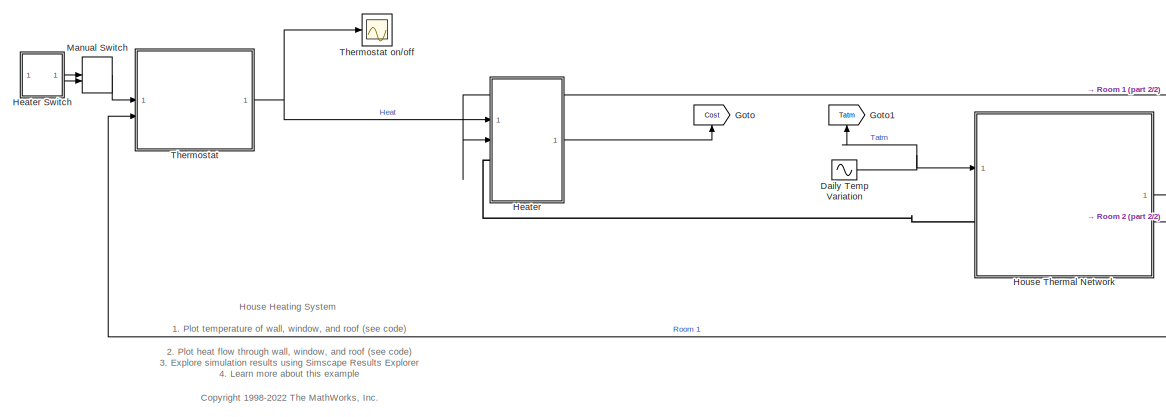
[diagram: root canvas - part 1/2, center side, full height]
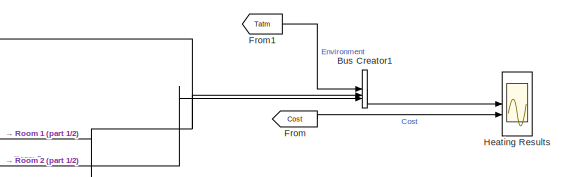
[diagram: root canvas - part 2/2, middle right region]
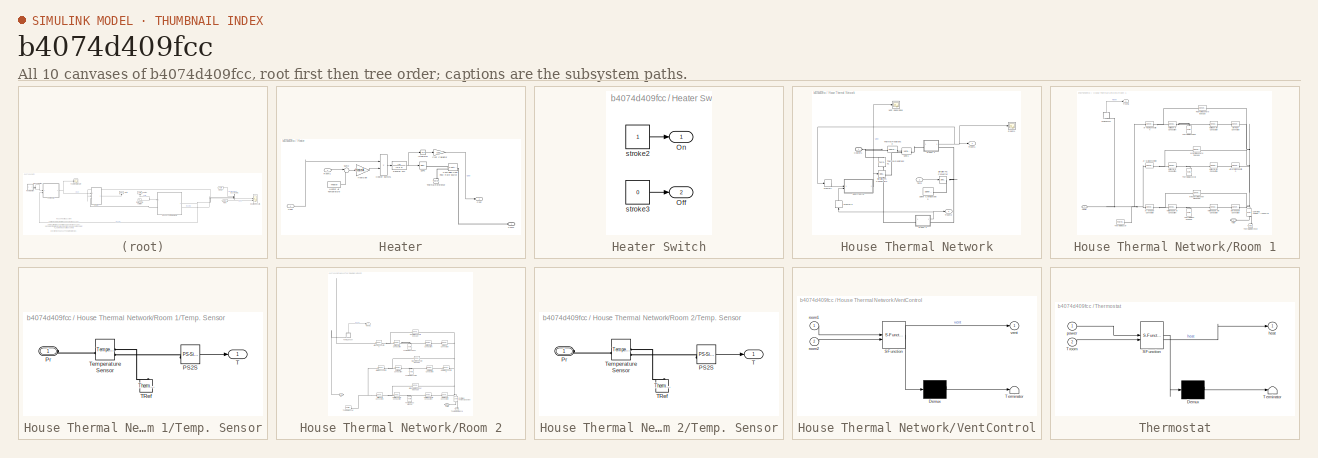
[diagram: thumbnail index - all 10 canvases of the model, root first then tree order]
MODEL slx_b4074d409fcc
KIND model
CONFIG AbsTol = 1e-3
CONFIG EnableMultiTasking = off
CONFIG FixedStep = 1
CONFIG InitFcn = %   Simscape Demo "House Heating System"\nmax_temp = 23;    % Maximum temperature\nmin_temp = 18;     % Minimum temperature\n% Walls\n% House length = 30 m\nlenHouse = 30;\n% House width = 10 m\nwidHouse = 10;\n% House height = 4 m\nhtHouse = 4;\nwallArea = 2*lenHouse*htHouse + 2*widHouse*htHouse;\nLWall = .2;\nwallVolume = wallArea * LWall;\nwallDensity = 1920;     % kg/m^3\nwallMass = wallVolume * wallDensity...<+1996ch>
CONFIG MaxStep = 50
CONFIG MinStep = auto
CONFIG RelTol = 1e-3
CONFIG SampleTimeConstraint = Unconstrained
CONFIG SolverName = VariableStepAuto
CONFIG StartTime = 0.0
CONFIG StopTime = 3600*24
BLOCK [BusCreator] Bus Creator1
  DisplayOption = bar
  InheritFromInputs = on
  Inputs = 3
BLOCK [Sin] Daily Temp Variation
  Amplitude = 10
  Bias = 10
  Frequency = 2*pi/(24*3600)
  Phase = (-pi)/2
  SampleTime = 0
BLOCK [From] From
  GotoTag = Cost
BLOCK [From] From1
  GotoTag = Tatm
BLOCK [Goto] Goto
  GotoTag = Cost
  NameLocation = right
BLOCK [Goto] Goto1
  GotoTag = Tatm
  NameLocation = right
BLOCK [SubSystem] Heater
BLOCK [SubSystem] Heater Switch
BLOCK [Outport] Heater Switch/Off
  Port = 2
  VectorParamsAs1DForOutWhenUnconnected = off
BLOCK [Outport] Heater Switch/On
  VectorParamsAs1DForOutWhenUnconnected = off
BLOCK [Constant] Heater Switch/stroke2
BLOCK [Constant] Heater Switch/stroke3
  Value = 0
BLOCK [PMIOPort] Heater/Conn1
  Side = Left
BLOCK [Reference] Heater/Controlled Heat Flow Rate Source  REF=fl_lib/Thermal/Thermal Sources/Controlled Heat Flow
Rate Source
  SourceBlock = fl_lib/Thermal/Thermal Sources/Controlled Heat Flow\nRate Source
  SourceType = Controlled Heat Flow\nRate Source
BLOCK [Outport] Heater/Cost
BLOCK [Gain] Heater/Cost Calculator
  Gain = cost
  OutDataTypeStr = Inherit: Same as input
  ParamDataTypeStr = Inherit: Same as input
  SaturateOnIntegerOverflow = on
BLOCK [Inport] Heater/Heat
BLOCK [Gain] Heater/HeatGain
  Gain = HeaterAirFlow * c_air
BLOCK [Constant] Heater/Heater Air Temperature
  Value = THeater
BLOCK [Product] Heater/Heater Switch1
  RndMeth = Zero
BLOCK [Integrator] Heater/Integrator
BLOCK [Inport] Heater/Room1
  Port = 2
BLOCK [Reference] Heater/S2PS  REF=nesl_utility/Simulink-PS
Converter
  SourceBlock = nesl_utility/Simulink-PS\nConverter
  SourceType = Simulink-PS\nConverter
BLOCK [Sum] Heater/Sum2
  Inputs = |-+
BLOCK [Reference] Heater/Thermal Reference  REF=fl_lib/Thermal/Thermal Elements/Thermal Reference
  NameLocation = right
  SourceBlock = fl_lib/Thermal/Thermal Elements/Thermal Reference
  SourceType = Thermal Reference
BLOCK [TransferFcn] Heater/Transfer Fcn
  Denominator = [0.5 1]
BLOCK [Scope] Heating Results
  Floating = off
  NumInputPorts = 2
  ScopeSpecificationString = Simulink.scopes.TimeScopeBlockCfg('CurrentConfiguration', extmgr.ConfigurationSet(extmgr.Configuration('Core','General UI',true,'FigureColor',[0.501960784313725 0.501960784313725 0.501960784313725]),extmgr.Configuration('Core','Source UI',true),extmgr.Configuration('Sources','WiredSimulink',true,'DataLoggingVariableName','a3','DataLoggingSaveFormat','Array','DataLoggingDecimation','1'),extmgr.Conf...<+3829ch>
  Tag = PublishScope
BLOCK [SubSystem] House Thermal Network
  Tag = PublishSubsystem
BLOCK [PMIOPort] House Thermal Network/Heater1
  Side = Left
  Tag = PMCPort
BLOCK [Memory] House Thermal Network/Memory
BLOCK [Memory] House Thermal Network/Memory1
  NameLocation = right
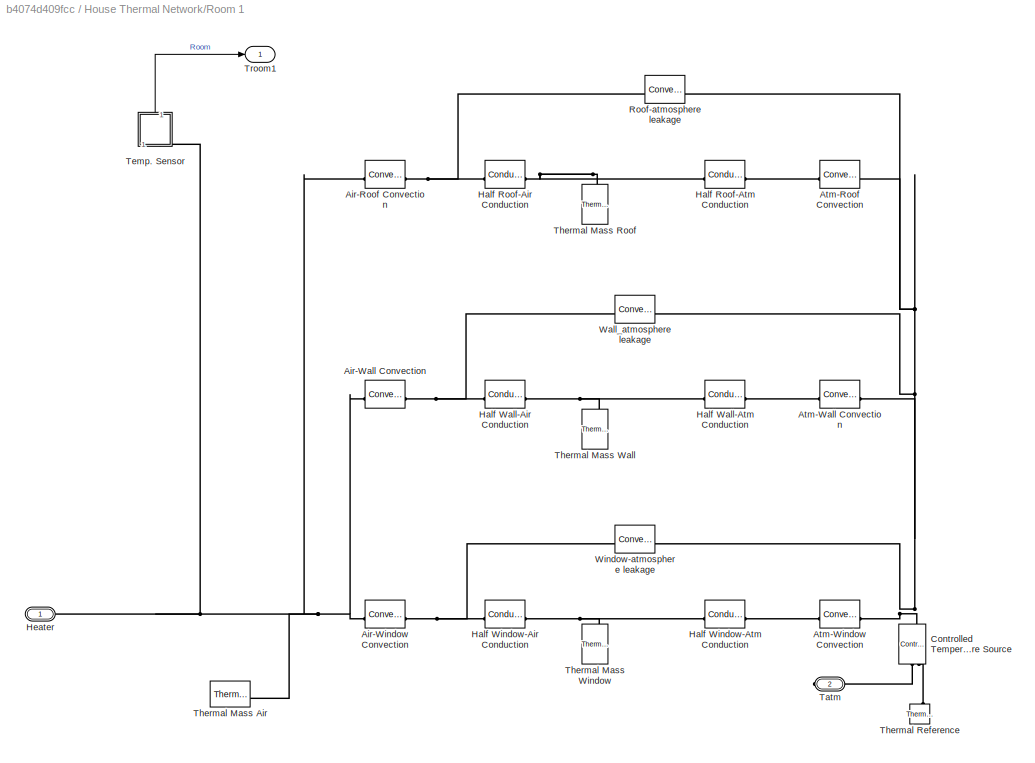
BLOCK [SubSystem] House Thermal Network/Room 1
BLOCK [Reference] House Thermal Network/Room 1/Air-Roof Convection  REF=fl_lib/Thermal/Thermal Elements/Convective Heat
Transfer
  SourceBlock = fl_lib/Thermal/Thermal Elements/Convective Heat\nTransfer
  SourceType = Convective Heat\nTransfer
BLOCK [Reference] House Thermal Network/Room 1/Air-Wall Convection  REF=fl_lib/Thermal/Thermal Elements/Convective Heat
Transfer
  SourceBlock = fl_lib/Thermal/Thermal Elements/Convective Heat\nTransfer
  SourceType = Convective Heat\nTransfer
BLOCK [Reference] House Thermal Network/Room 1/Air-Window Convection  REF=fl_lib/Thermal/Thermal Elements/Convective Heat
Transfer
  SourceBlock = fl_lib/Thermal/Thermal Elements/Convective Heat\nTransfer
  SourceType = Convective Heat\nTransfer
BLOCK [Reference] House Thermal Network/Room 1/Atm-Roof Convection  REF=fl_lib/Thermal/Thermal Elements/Convective Heat
Transfer
  SourceBlock = fl_lib/Thermal/Thermal Elements/Convective Heat\nTransfer
  SourceType = Convective Heat\nTransfer
BLOCK [Reference] House Thermal Network/Room 1/Atm-Wall Convection  REF=fl_lib/Thermal/Thermal Elements/Convective Heat
Transfer
  SourceBlock = fl_lib/Thermal/Thermal Elements/Convective Heat\nTransfer
  SourceType = Convective Heat\nTransfer
BLOCK [Reference] House Thermal Network/Room 1/Atm-Window Convection  REF=fl_lib/Thermal/Thermal Elements/Convective Heat
Transfer
  SourceBlock = fl_lib/Thermal/Thermal Elements/Convective Heat\nTransfer
  SourceType = Convective Heat\nTransfer
BLOCK [Reference] House Thermal Network/Room 1/Controlled Temperature Source  REF=fl_lib/Thermal/Thermal Sources/Controlled
Temperature Source
  NameLocation = right
  SourceBlock = fl_lib/Thermal/Thermal Sources/Controlled\nTemperature Source
  SourceType = Controlled\nTemperature Source
BLOCK [Reference] House Thermal Network/Room 1/Half Roof-Air Conduction  REF=fl_lib/Thermal/Thermal Elements/Conductive Heat
Transfer
  SourceBlock = fl_lib/Thermal/Thermal Elements/Conductive Heat\nTransfer
  SourceType = Conductive Heat\nTransfer
BLOCK [Reference] House Thermal Network/Room 1/Half Roof-Atm Conduction  REF=fl_lib/Thermal/Thermal Elements/Conductive Heat
Transfer
  SourceBlock = fl_lib/Thermal/Thermal Elements/Conductive Heat\nTransfer
  SourceType = Conductive Heat\nTransfer
BLOCK [Reference] House Thermal Network/Room 1/Half Wall-Air Conduction  REF=fl_lib/Thermal/Thermal Elements/Conductive Heat
Transfer
  SourceBlock = fl_lib/Thermal/Thermal Elements/Conductive Heat\nTransfer
  SourceType = Conductive Heat\nTransfer
BLOCK [Reference] House Thermal Network/Room 1/Half Wall-Atm Conduction  REF=fl_lib/Thermal/Thermal Elements/Conductive Heat
Transfer
  SourceBlock = fl_lib/Thermal/Thermal Elements/Conductive Heat\nTransfer
  SourceType = Conductive Heat\nTransfer
BLOCK [Reference] House Thermal Network/Room 1/Half Window-Air Conduction  REF=fl_lib/Thermal/Thermal Elements/Conductive Heat
Transfer
  SourceBlock = fl_lib/Thermal/Thermal Elements/Conductive Heat\nTransfer
  SourceType = Conductive Heat\nTransfer
BLOCK [Reference] House Thermal Network/Room 1/Half Window-Atm Conduction  REF=fl_lib/Thermal/Thermal Elements/Conductive Heat
Transfer
  SourceBlock = fl_lib/Thermal/Thermal Elements/Conductive Heat\nTransfer
  SourceType = Conductive Heat\nTransfer
BLOCK [PMIOPort] House Thermal Network/Room 1/Heater
  Side = Left
BLOCK [Reference] House Thermal Network/Room 1/Roof-atmosphere leakage  REF=fl_lib/Thermal/Thermal Elements/Convective Heat
Transfer
  SourceBlock = fl_lib/Thermal/Thermal Elements/Convective Heat\nTransfer
  SourceType = Convective Heat\nTransfer
BLOCK [PMIOPort] House Thermal Network/Room 1/Tatm
  Port = 2
  Side = Right
BLOCK [SubSystem] House Thermal Network/Room 1/Temp. Sensor
  NameLocation = right
BLOCK [Reference] House Thermal Network/Room 1/Temp. Sensor/PS2S  REF=nesl_utility/PS-Simulink
Converter
  SourceBlock = nesl_utility/PS-Simulink\nConverter
  SourceType = PS-Simulink\nConverter
BLOCK [PMIOPort] House Thermal Network/Room 1/Temp. Sensor/Pr
  Side = Left
BLOCK [Outport] House Thermal Network/Room 1/Temp. Sensor/T
  VectorParamsAs1DForOutWhenUnconnected = off
BLOCK [Reference] House Thermal Network/Room 1/Temp. Sensor/TRef  REF=fl_lib/Thermal/Thermal Elements/Thermal Reference
  NameLocation = right
  SourceBlock = fl_lib/Thermal/Thermal Elements/Thermal Reference
  SourceType = Thermal Reference
BLOCK [Reference] House Thermal Network/Room 1/Temp. Sensor/Temperature Sensor  REF=fl_lib/Thermal/Thermal Sensors/Temperature Sensor
  SourceBlock = fl_lib/Thermal/Thermal Sensors/Temperature Sensor
  SourceType = Temperature Sensor
BLOCK [Reference] House Thermal Network/Room 1/Thermal Mass Air  REF=fl_lib/Thermal/Thermal Elements/Thermal Mass
  NameLocation = top
  SourceBlock = fl_lib/Thermal/Thermal Elements/Thermal Mass
  SourceType = Thermal Mass
BLOCK [Reference] House Thermal Network/Room 1/Thermal Mass Roof  REF=fl_lib/Thermal/Thermal Elements/Thermal Mass
  NameLocation = right
  SourceBlock = fl_lib/Thermal/Thermal Elements/Thermal Mass
  SourceType = Thermal Mass
BLOCK [Reference] House Thermal Network/Room 1/Thermal Mass Wall  REF=fl_lib/Thermal/Thermal Elements/Thermal Mass
  NameLocation = right
  SourceBlock = fl_lib/Thermal/Thermal Elements/Thermal Mass
  SourceType = Thermal Mass
BLOCK [Reference] House Thermal Network/Room 1/Thermal Mass Window  REF=fl_lib/Thermal/Thermal Elements/Thermal Mass
  NameLocation = right
  SourceBlock = fl_lib/Thermal/Thermal Elements/Thermal Mass
  SourceType = Thermal Mass
BLOCK [Reference] House Thermal Network/Room 1/Thermal Reference  REF=fl_lib/Thermal/Thermal Elements/Thermal Reference
  NameLocation = right
  SourceBlock = fl_lib/Thermal/Thermal Elements/Thermal Reference
  SourceType = Thermal Reference
BLOCK [Outport] House Thermal Network/Room 1/Troom1
  VectorParamsAs1DForOutWhenUnconnected = off
BLOCK [Reference] House Thermal Network/Room 1/Wall_atmosphere leakage  REF=fl_lib/Thermal/Thermal Elements/Convective Heat
Transfer
  SourceBlock = fl_lib/Thermal/Thermal Elements/Convective Heat\nTransfer
  SourceType = Convective Heat\nTransfer
BLOCK [Reference] House Thermal Network/Room 1/Window-atmosphere leakage  REF=fl_lib/Thermal/Thermal Elements/Convective Heat
Transfer
  SourceBlock = fl_lib/Thermal/Thermal Elements/Convective Heat\nTransfer
  SourceType = Convective Heat\nTransfer
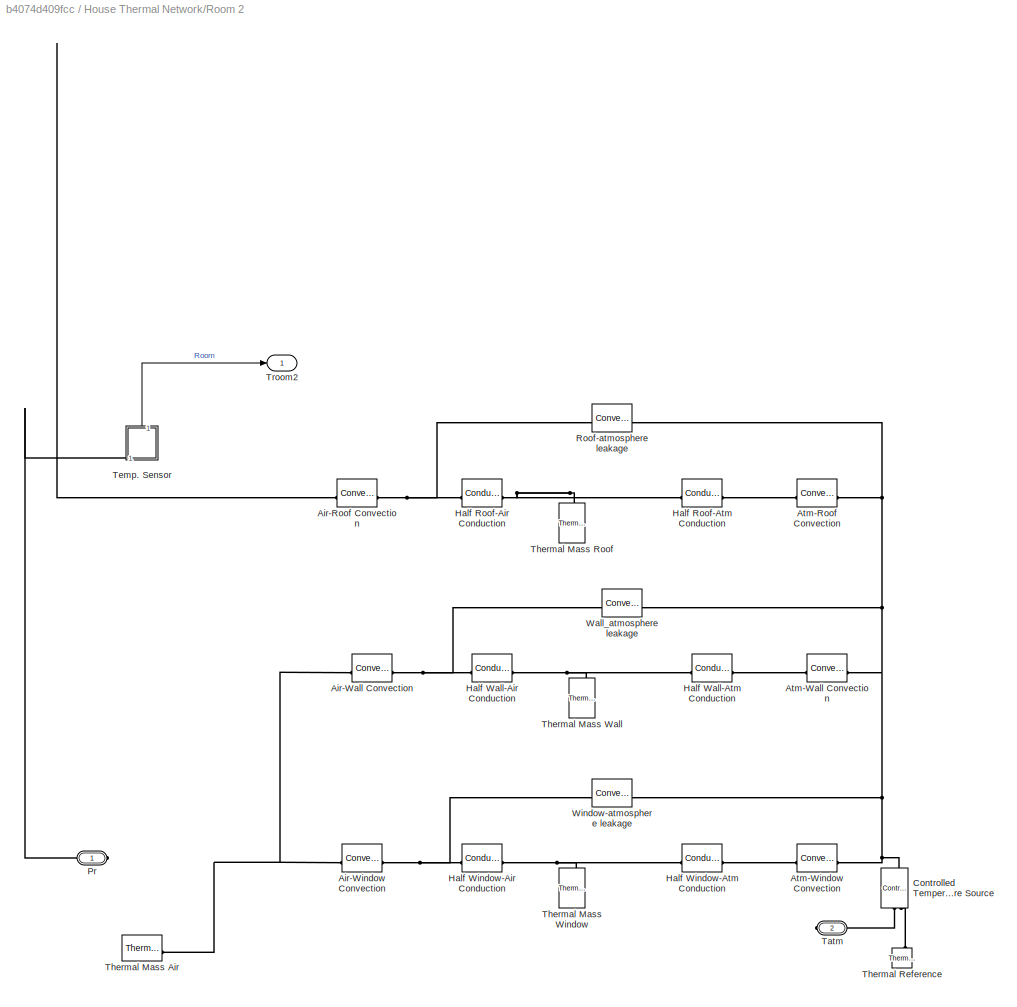
BLOCK [SubSystem] House Thermal Network/Room 2
BLOCK [Reference] House Thermal Network/Room 2/Air-Roof Convection  REF=fl_lib/Thermal/Thermal Elements/Convective Heat
Transfer
  SourceBlock = fl_lib/Thermal/Thermal Elements/Convective Heat\nTransfer
  SourceType = Convective Heat\nTransfer
BLOCK [Reference] House Thermal Network/Room 2/Air-Wall Convection  REF=fl_lib/Thermal/Thermal Elements/Convective Heat
Transfer
  SourceBlock = fl_lib/Thermal/Thermal Elements/Convective Heat\nTransfer
  SourceType = Convective Heat\nTransfer
BLOCK [Reference] House Thermal Network/Room 2/Air-Window Convection  REF=fl_lib/Thermal/Thermal Elements/Convective Heat
Transfer
  SourceBlock = fl_lib/Thermal/Thermal Elements/Convective Heat\nTransfer
  SourceType = Convective Heat\nTransfer
BLOCK [Reference] House Thermal Network/Room 2/Atm-Roof Convection  REF=fl_lib/Thermal/Thermal Elements/Convective Heat
Transfer
  SourceBlock = fl_lib/Thermal/Thermal Elements/Convective Heat\nTransfer
  SourceType = Convective Heat\nTransfer
BLOCK [Reference] House Thermal Network/Room 2/Atm-Wall Convection  REF=fl_lib/Thermal/Thermal Elements/Convective Heat
Transfer
  SourceBlock = fl_lib/Thermal/Thermal Elements/Convective Heat\nTransfer
  SourceType = Convective Heat\nTransfer
BLOCK [Reference] House Thermal Network/Room 2/Atm-Window Convection  REF=fl_lib/Thermal/Thermal Elements/Convective Heat
Transfer
  SourceBlock = fl_lib/Thermal/Thermal Elements/Convective Heat\nTransfer
  SourceType = Convective Heat\nTransfer
BLOCK [Reference] House Thermal Network/Room 2/Controlled Temperature Source  REF=fl_lib/Thermal/Thermal Sources/Controlled
Temperature Source
  NameLocation = right
  SourceBlock = fl_lib/Thermal/Thermal Sources/Controlled\nTemperature Source
  SourceType = Controlled\nTemperature Source
BLOCK [Reference] House Thermal Network/Room 2/Half Roof-Air Conduction  REF=fl_lib/Thermal/Thermal Elements/Conductive Heat
Transfer
  SourceBlock = fl_lib/Thermal/Thermal Elements/Conductive Heat\nTransfer
  SourceType = Conductive Heat\nTransfer
BLOCK [Reference] House Thermal Network/Room 2/Half Roof-Atm Conduction  REF=fl_lib/Thermal/Thermal Elements/Conductive Heat
Transfer
  SourceBlock = fl_lib/Thermal/Thermal Elements/Conductive Heat\nTransfer
  SourceType = Conductive Heat\nTransfer
BLOCK [Reference] House Thermal Network/Room 2/Half Wall-Air Conduction  REF=fl_lib/Thermal/Thermal Elements/Conductive Heat
Transfer
  SourceBlock = fl_lib/Thermal/Thermal Elements/Conductive Heat\nTransfer
  SourceType = Conductive Heat\nTransfer
BLOCK [Reference] House Thermal Network/Room 2/Half Wall-Atm Conduction  REF=fl_lib/Thermal/Thermal Elements/Conductive Heat
Transfer
  SourceBlock = fl_lib/Thermal/Thermal Elements/Conductive Heat\nTransfer
  SourceType = Conductive Heat\nTransfer
BLOCK [Reference] House Thermal Network/Room 2/Half Window-Air Conduction  REF=fl_lib/Thermal/Thermal Elements/Conductive Heat
Transfer
  SourceBlock = fl_lib/Thermal/Thermal Elements/Conductive Heat\nTransfer
  SourceType = Conductive Heat\nTransfer
BLOCK [Reference] House Thermal Network/Room 2/Half Window-Atm Conduction  REF=fl_lib/Thermal/Thermal Elements/Conductive Heat
Transfer
  SourceBlock = fl_lib/Thermal/Thermal Elements/Conductive Heat\nTransfer
  SourceType = Conductive Heat\nTransfer
BLOCK [PMIOPort] House Thermal Network/Room 2/Pr
  Side = Left
BLOCK [Reference] House Thermal Network/Room 2/Roof-atmosphere leakage  REF=fl_lib/Thermal/Thermal Elements/Convective Heat
Transfer
  SourceBlock = fl_lib/Thermal/Thermal Elements/Convective Heat\nTransfer
  SourceType = Convective Heat\nTransfer
BLOCK [PMIOPort] House Thermal Network/Room 2/Tatm
  Port = 2
  Side = Right
BLOCK [SubSystem] House Thermal Network/Room 2/Temp. Sensor
  NameLocation = right
BLOCK [Reference] House Thermal Network/Room 2/Temp. Sensor/PS2S  REF=nesl_utility/PS-Simulink
Converter
  SourceBlock = nesl_utility/PS-Simulink\nConverter
  SourceType = PS-Simulink\nConverter
BLOCK [PMIOPort] House Thermal Network/Room 2/Temp. Sensor/Pr
  Side = Left
BLOCK [Outport] House Thermal Network/Room 2/Temp. Sensor/T
  VectorParamsAs1DForOutWhenUnconnected = off
BLOCK [Reference] House Thermal Network/Room 2/Temp. Sensor/TRef  REF=fl_lib/Thermal/Thermal Elements/Thermal Reference
  NameLocation = right
  SourceBlock = fl_lib/Thermal/Thermal Elements/Thermal Reference
  SourceType = Thermal Reference
BLOCK [Reference] House Thermal Network/Room 2/Temp. Sensor/Temperature Sensor  REF=fl_lib/Thermal/Thermal Sensors/Temperature Sensor
  SourceBlock = fl_lib/Thermal/Thermal Sensors/Temperature Sensor
  SourceType = Temperature Sensor
BLOCK [Reference] House Thermal Network/Room 2/Thermal Mass Air  REF=fl_lib/Thermal/Thermal Elements/Thermal Mass
  NameLocation = top
  SourceBlock = fl_lib/Thermal/Thermal Elements/Thermal Mass
  SourceType = Thermal Mass
BLOCK [Reference] House Thermal Network/Room 2/Thermal Mass Roof  REF=fl_lib/Thermal/Thermal Elements/Thermal Mass
  NameLocation = right
  SourceBlock = fl_lib/Thermal/Thermal Elements/Thermal Mass
  SourceType = Thermal Mass
BLOCK [Reference] House Thermal Network/Room 2/Thermal Mass Wall  REF=fl_lib/Thermal/Thermal Elements/Thermal Mass
  NameLocation = right
  SourceBlock = fl_lib/Thermal/Thermal Elements/Thermal Mass
  SourceType = Thermal Mass
BLOCK [Reference] House Thermal Network/Room 2/Thermal Mass Window  REF=fl_lib/Thermal/Thermal Elements/Thermal Mass
  NameLocation = right
  SourceBlock = fl_lib/Thermal/Thermal Elements/Thermal Mass
  SourceType = Thermal Mass
BLOCK [Reference] House Thermal Network/Room 2/Thermal Reference  REF=fl_lib/Thermal/Thermal Elements/Thermal Reference
  NameLocation = right
  SourceBlock = fl_lib/Thermal/Thermal Elements/Thermal Reference
  SourceType = Thermal Reference
BLOCK [Outport] House Thermal Network/Room 2/Troom2
  VectorParamsAs1DForOutWhenUnconnected = off
BLOCK [Reference] House Thermal Network/Room 2/Wall_atmosphere leakage  REF=fl_lib/Thermal/Thermal Elements/Convective Heat
Transfer
  SourceBlock = fl_lib/Thermal/Thermal Elements/Convective Heat\nTransfer
  SourceType = Convective Heat\nTransfer
BLOCK [Reference] House Thermal Network/Room 2/Window-atmosphere leakage  REF=fl_lib/Thermal/Thermal Elements/Convective Heat
Transfer
  SourceBlock = fl_lib/Thermal/Thermal Elements/Convective Heat\nTransfer
  SourceType = Convective Heat\nTransfer
BLOCK [Scope] House Thermal Network/Room1
  Floating = off
  NumInputPorts = 1
  ScopeSpecificationString = Simulink.scopes.TimeScopeBlockCfg('CurrentConfiguration', extmgr.ConfigurationSet(extmgr.Configuration('Core','General UI',true),extmgr.Configuration('Core','Source UI',true),extmgr.Configuration('Sources','WiredSimulink',true,'DataLoggingVariableName','ScopeData3'),extmgr.Configuration('Visuals','Time Domain',true,'SerializedDisplays',{struct('MinYLimReal','17.00782','MaxYLimReal','24.17283','YLa...<+1424ch>
BLOCK [Reference] House Thermal Network/Simulink-PS Converter  REF=nesl_utility/Simulink-PS
Converter
  SourceBlock = nesl_utility/Simulink-PS\nConverter
  SourceType = Simulink-PS\nConverter
BLOCK [Reference] House Thermal Network/Simulink-PS Converter2  REF=nesl_utility/Simulink-PS
Converter
  SourceBlock = nesl_utility/Simulink-PS\nConverter
  SourceType = Simulink-PS\nConverter
BLOCK [Reference] House Thermal Network/Solver Configuration  REF=nesl_utility/Solver
Configuration
  SourceBlock = nesl_utility/Solver\nConfiguration
  SourceType = Solver\nConfiguration
BLOCK [Inport] House Thermal Network/Tatm
BLOCK [Reference] House Thermal Network/Thermal Resistance  REF=fl_lib/Thermal/Thermal Elements/Thermal Resistance
  SourceBlock = fl_lib/Thermal/Thermal Elements/Thermal Resistance
  SourceType = Thermal Resistance
BLOCK [Reference] House Thermal Network/Thermal Resistance1  REF=fl_lib/Thermal/Thermal Elements/Thermal Resistance
  NameLocation = right
  SourceBlock = fl_lib/Thermal/Thermal Elements/Thermal Resistance
  SourceType = Thermal Resistance
BLOCK [Outport] House Thermal Network/Troom1
  VectorParamsAs1DForOutWhenUnconnected = off
BLOCK [Outport] House Thermal Network/Troom2
  Port = 2
  VectorParamsAs1DForOutWhenUnconnected = off
BLOCK [Scope] House Thermal Network/Vent open//close
  Floating = off
  NumInputPorts = 1
  ScopeSpecificationString = Simulink.scopes.TimeScopeBlockCfg('CurrentConfiguration', extmgr.ConfigurationSet(extmgr.Configuration('Core','General UI',true),extmgr.Configuration('Core','Source UI',true),extmgr.Configuration('Sources','WiredSimulink',true,'DataLoggingVariableName','ScopeData2'),extmgr.Configuration('Visuals','Time Domain',true,'SerializedDisplays',{struct('MinYLimReal','-0.325','MaxYLimReal','2.925','YLabelRe...<+1405ch>
BLOCK [Reference] House Thermal Network/Vent1  REF=fl_lib/Thermal/Thermal Elements/Variable Thermal
Resistance
  SourceBlock = fl_lib/Thermal/Thermal Elements/Variable Thermal\nResistance
  SourceType = Variable Thermal\nResistance
BLOCK [SubSystem] House Thermal Network/VentControl
  ErrorFcn = Stateflow.Translate.translate
  PermitHierarchicalResolution = ExplicitOnly
  SFBlockType = MATLAB Function
  TreatAsAtomicUnit = on
BLOCK [Demux] House Thermal Network/VentControl/ Demux 
  Outputs = 1
BLOCK [S-Function] House Thermal Network/VentControl/ SFunction 
  EnableBusSupport = on
  FunctionName = sf_sfun
  PortCounts = [2 2]
  SFcnIsStateOwnerBlock = off
  SFunctionDeploymentMode = off
  Tag = Stateflow S-Function 3
BLOCK [Terminator] House Thermal Network/VentControl/ Terminator 
BLOCK [Inport] House Thermal Network/VentControl/room1
BLOCK [Inport] House Thermal Network/VentControl/room2
  Port = 2
BLOCK [Outport] House Thermal Network/VentControl/vent
  VectorParamsAs1DForOutWhenUnconnected = off
BLOCK [ManualSwitch] Manual Switch
BLOCK [SubSystem] Thermostat
  ErrorFcn = Stateflow.Translate.translate
  PermitHierarchicalResolution = ExplicitOnly
  SFBlockType = MATLAB Function
  TreatAsAtomicUnit = on
BLOCK [Scope] Thermostat on//off
  Floating = off
  NumInputPorts = 1
  ScopeSpecificationString = Simulink.scopes.TimeScopeBlockCfg('CurrentConfiguration', extmgr.ConfigurationSet(extmgr.Configuration('Core','General UI',true),extmgr.Configuration('Core','Source UI',true),extmgr.Configuration('Sources','WiredSimulink',true,'DataLoggingVariableName','ScopeData1'),extmgr.Configuration('Visuals','Time Domain',true,'SerializedDisplays',{struct('MinYLimReal','-0.125','MaxYLimReal','1.125','YLabelRe...<+1405ch>
BLOCK [Demux] Thermostat/ Demux 
  Outputs = 1
BLOCK [S-Function] Thermostat/ SFunction 
  EnableBusSupport = on
  FunctionName = sf_sfun
  Parameters = max_temp,min_temp
  PortCounts = [2 2]
  SFcnIsStateOwnerBlock = off
  SFunctionDeploymentMode = off
  Tag = Stateflow S-Function 1
BLOCK [Terminator] Thermostat/ Terminator 
BLOCK [Inport] Thermostat/Troom
  Port = 2
BLOCK [Outport] Thermostat/heat
  VectorParamsAs1DForOutWhenUnconnected = off
BLOCK [Inport] Thermostat/power
ANNOTATION (root): 1. Plot temperature of wall, window, and roof ( see code ) 2. Plot heat flow through wall, window, and roof ( see code ) 3. Explore simulation results using Simscape Results Explorer 4. Learn more about this example
ANNOTATION (root): <copyright redacted>
ANNOTATION (root): House Heating System
LINE Bus Creator1:1 -> Heating Results:1
NET Daily Temp Variation:1 -> Goto1:1, House Thermal Network:1
LINE From1:1 -> Bus Creator1:1
LINE From:1 -> Heating Results:2
LINE Heater Switch/stroke2:1 -> Heater Switch/On:1
LINE Heater Switch/stroke3:1 -> Heater Switch/Off:1
LINE Heater Switch:1 -> Manual Switch:1
LINE Heater Switch:2 -> Manual Switch:2
LINE Heater/Cost Calculator:1 -> Heater/Cost:1
LINE Heater/Heat:1 -> Heater/Heater Switch1:1
LINE Heater/HeatGain:1 -> Heater/Heater Switch1:2
LINE Heater/Heater Air Temperature:1 -> Heater/Sum2:2
LINE Heater/Heater Switch1:1 -> Heater/Transfer Fcn:1
LINE Heater/Integrator:1 -> Heater/Cost Calculator:1
LINE Heater/Room1:1 -> Heater/Sum2:1
LINE Heater/Sum2:1 -> Heater/HeatGain:1
NET Heater/Transfer Fcn:1 -> Heater/Integrator:1, Heater/S2PS:1
LINE Heater:1 -> Goto:1
LINE House Thermal Network/Memory1:1 -> House Thermal Network/VentControl:2
LINE House Thermal Network/Memory:1 -> House Thermal Network/VentControl:1
LINE House Thermal Network/Room 1/Temp. Sensor/PS2S:1 -> House Thermal Network/Room 1/Temp. Sensor/T:1
LINE House Thermal Network/Room 1/Temp. Sensor:1 -> House Thermal Network/Room 1/Troom1:1
NET House Thermal Network/Room 1:1 -> House Thermal Network/Memory:1, House Thermal Network/Room1:1, House Thermal Network/Troom1:1
LINE House Thermal Network/Room 2/Temp. Sensor/PS2S:1 -> House Thermal Network/Room 2/Temp. Sensor/T:1
LINE House Thermal Network/Room 2/Temp. Sensor:1 -> House Thermal Network/Room 2/Troom2:1
NET House Thermal Network/Room 2:1 -> House Thermal Network/Memory1:1, House Thermal Network/Troom2:1
LINE House Thermal Network/Tatm:1 -> House Thermal Network/Simulink-PS Converter:1
NET House Thermal Network/VentControl:1 -> House Thermal Network/Simulink-PS Converter2:1, House Thermal Network/Vent open//close:1
NET House Thermal Network:1 -> Bus Creator1:2, Heater:2, Thermostat:2
LINE House Thermal Network:2 -> Bus Creator1:3
LINE Manual Switch:1 -> Thermostat:1
NET Thermostat:1 -> Heater:1, Thermostat on//off:1
PLINE Heater/Conn1:RConn1 -- Heater/Controlled Heat Flow Rate Source:LConn1
PLINE Heater/Controlled Heat Flow Rate Source:RConn1 -- Heater/S2PS:RConn1
PLINE Heater/Controlled Heat Flow Rate Source:RConn2 -- Heater/Thermal Reference:LConn1
PLINE Heater:LConn1 -- House Thermal Network:LConn1
PNET net1: House Thermal Network/Heater1:RConn1 -- House Thermal Network/Thermal Resistance1:RConn1 -- House Thermal Network/Thermal Resistance:LConn1
PNET net2: House Thermal Network/Room 1/Air-Roof Convection:LConn1 -- House Thermal Network/Room 1/Air-Wall Convection:LConn1 -- House Thermal Network/Room 1/Air-Window Convection:LConn1 -- House Thermal Network/Room 1/Heater:RConn1 -- House Thermal Network/Room 1/Temp. Sensor:LConn1 -- House Thermal Network/Room 1/Thermal Mass Air:LConn1
PNET net3: House Thermal Network/Room 1/Air-Roof Convection:RConn1 -- House Thermal Network/Room 1/Half Roof-Air Conduction:LConn1 -- House Thermal Network/Room 1/Roof-atmosphere leakage:LConn1
PNET net4: House Thermal Network/Room 1/Air-Wall Convection:RConn1 -- House Thermal Network/Room 1/Half Wall-Air Conduction:LConn1 -- House Thermal Network/Room 1/Wall_atmosphere leakage:LConn1
PNET net5: House Thermal Network/Room 1/Air-Window Convection:RConn1 -- House Thermal Network/Room 1/Half Window-Air Conduction:LConn1 -- House Thermal Network/Room 1/Window-atmosphere leakage:LConn1
PLINE House Thermal Network/Room 1/Atm-Roof Convection:LConn1 -- House Thermal Network/Room 1/Half Roof-Atm Conduction:RConn1
PNET net6: House Thermal Network/Room 1/Atm-Roof Convection:RConn1 -- House Thermal Network/Room 1/Atm-Wall Convection:RConn1 -- House Thermal Network/Room 1/Atm-Window Convection:RConn1 -- House Thermal Network/Room 1/Controlled Temperature Source:LConn1 -- House Thermal Network/Room 1/Roof-atmosphere leakage:RConn1 -- House Thermal Network/Room 1/Wall_atmosphere leakage:RConn1 -- House Thermal Network/Room 1/Window-atmosphere leakage:RConn1
PLINE House Thermal Network/Room 1/Atm-Wall Convection:LConn1 -- House Thermal Network/Room 1/Half Wall-Atm Conduction:RConn1
PLINE House Thermal Network/Room 1/Atm-Window Convection:LConn1 -- House Thermal Network/Room 1/Half Window-Atm Conduction:RConn1
PLINE House Thermal Network/Room 1/Controlled Temperature Source:RConn1 -- House Thermal Network/Room 1/Tatm:RConn1
PLINE House Thermal Network/Room 1/Controlled Temperature Source:RConn2 -- House Thermal Network/Room 1/Thermal Reference:LConn1
PNET net7: House Thermal Network/Room 1/Half Roof-Air Conduction:RConn1 -- House Thermal Network/Room 1/Half Roof-Atm Conduction:LConn1 -- House Thermal Network/Room 1/Thermal Mass Roof:LConn1
PNET net8: House Thermal Network/Room 1/Half Wall-Air Conduction:RConn1 -- House Thermal Network/Room 1/Half Wall-Atm Conduction:LConn1 -- House Thermal Network/Room 1/Thermal Mass Wall:LConn1
PNET net9: House Thermal Network/Room 1/Half Window-Air Conduction:RConn1 -- House Thermal Network/Room 1/Half Window-Atm Conduction:LConn1 -- House Thermal Network/Room 1/Thermal Mass Window:LConn1
PLINE House Thermal Network/Room 1/Temp. Sensor/PS2S:LConn1 -- House Thermal Network/Room 1/Temp. Sensor/Temperature Sensor:RConn2
PLINE House Thermal Network/Room 1/Temp. Sensor/Pr:RConn1 -- House Thermal Network/Room 1/Temp. Sensor/Temperature Sensor:LConn1
PLINE House Thermal Network/Room 1/Temp. Sensor/TRef:LConn1 -- House Thermal Network/Room 1/Temp. Sensor/Temperature Sensor:RConn1
PLINE House Thermal Network/Room 1:LConn1 -- House Thermal Network/Vent1:RConn1
PNET net10: House Thermal Network/Room 1:RConn1 -- House Thermal Network/Room 2:RConn1 -- House Thermal Network/Simulink-PS Converter:RConn1 -- House Thermal Network/Solver Configuration:RConn1
PNET net11: House Thermal Network/Room 2/Air-Roof Convection:LConn1 -- House Thermal Network/Room 2/Air-Wall Convection:LConn1 -- House Thermal Network/Room 2/Air-Window Convection:LConn1 -- House Thermal Network/Room 2/Pr:RConn1 -- House Thermal Network/Room 2/Temp. Sensor:LConn1 -- House Thermal Network/Room 2/Thermal Mass Air:LConn1
PNET net12: House Thermal Network/Room 2/Air-Roof Convection:RConn1 -- House Thermal Network/Room 2/Half Roof-Air Conduction:LConn1 -- House Thermal Network/Room 2/Roof-atmosphere leakage:LConn1
PNET net13: House Thermal Network/Room 2/Air-Wall Convection:RConn1 -- House Thermal Network/Room 2/Half Wall-Air Conduction:LConn1 -- House Thermal Network/Room 2/Wall_atmosphere leakage:LConn1
PNET net14: House Thermal Network/Room 2/Air-Window Convection:RConn1 -- House Thermal Network/Room 2/Half Window-Air Conduction:LConn1 -- House Thermal Network/Room 2/Window-atmosphere leakage:LConn1
PLINE House Thermal Network/Room 2/Atm-Roof Convection:LConn1 -- House Thermal Network/Room 2/Half Roof-Atm Conduction:RConn1
PNET net15: House Thermal Network/Room 2/Atm-Roof Convection:RConn1 -- House Thermal Network/Room 2/Atm-Wall Convection:RConn1 -- House Thermal Network/Room 2/Atm-Window Convection:RConn1 -- House Thermal Network/Room 2/Controlled Temperature Source:LConn1 -- House Thermal Network/Room 2/Roof-atmosphere leakage:RConn1 -- House Thermal Network/Room 2/Wall_atmosphere leakage:RConn1 -- House Thermal Network/Room 2/Window-atmosphere leakage:RConn1
PLINE House Thermal Network/Room 2/Atm-Wall Convection:LConn1 -- House Thermal Network/Room 2/Half Wall-Atm Conduction:RConn1
PLINE House Thermal Network/Room 2/Atm-Window Convection:LConn1 -- House Thermal Network/Room 2/Half Window-Atm Conduction:RConn1
PLINE House Thermal Network/Room 2/Controlled Temperature Source:RConn1 -- House Thermal Network/Room 2/Tatm:RConn1
PLINE House Thermal Network/Room 2/Controlled Temperature Source:RConn2 -- House Thermal Network/Room 2/Thermal Reference:LConn1
PNET net16: House Thermal Network/Room 2/Half Roof-Air Conduction:RConn1 -- House Thermal Network/Room 2/Half Roof-Atm Conduction:LConn1 -- House Thermal Network/Room 2/Thermal Mass Roof:LConn1
PNET net17: House Thermal Network/Room 2/Half Wall-Air Conduction:RConn1 -- House Thermal Network/Room 2/Half Wall-Atm Conduction:LConn1 -- House Thermal Network/Room 2/Thermal Mass Wall:LConn1
PNET net18: House Thermal Network/Room 2/Half Window-Air Conduction:RConn1 -- House Thermal Network/Room 2/Half Window-Atm Conduction:LConn1 -- House Thermal Network/Room 2/Thermal Mass Window:LConn1
PLINE House Thermal Network/Room 2/Temp. Sensor/PS2S:LConn1 -- House Thermal Network/Room 2/Temp. Sensor/Temperature Sensor:RConn2
PLINE House Thermal Network/Room 2/Temp. Sensor/Pr:RConn1 -- House Thermal Network/Room 2/Temp. Sensor/Temperature Sensor:LConn1
PLINE House Thermal Network/Room 2/Temp. Sensor/TRef:LConn1 -- House Thermal Network/Room 2/Temp. Sensor/Temperature Sensor:RConn1
PLINE House Thermal Network/Room 2:LConn1 -- House Thermal Network/Thermal Resistance1:LConn1
PLINE House Thermal Network/Simulink-PS Converter2:RConn1 -- House Thermal Network/Vent1:LConn2
PLINE House Thermal Network/Thermal Resistance:RConn1 -- House Thermal Network/Vent1:LConn1
note: NET lines group one-source signal fan-out (src -> all destinations, sorted); 1:1 wires keep LINE; PNET lines group multi-terminal physical nets as a canonical sorted terminal list (undirected conserving connections); 2-terminal nets keep the pairwise PLINE form
CHART Thermostat states=1 transitions=1
  STATE_LABEL 'eML_blk_kernel()'
  STATE_LABEL 'SCRIPT:\nfunction heat = thermostat(power, Troom, max_temp, min_temp)\n%Implement the thermostat logic for the heating system\n%#codegen\n    persistent HEAT\n\n    if isempty(HEAT)\n        HEAT = false;\n    end\n\n    if HEAT && (Troom > max_temp || ~power)\n        HEAT = false;\n    elseif ~HEAT && Troom < min_temp && power\n        HEAT = true;\n    end\n    \n    heat = HEAT;\n    \nend'
CHART House Thermal Network/VentControl states=1 transitions=1
  STATE_LABEL 'eML_blk_kernel()'
  STATE_LABEL 'SCRIPT:\nfunction vent = ventControl(room1, room2)\n%Implement the vent logic for Room 1\'s smart vent to redirect air to Room 2\n%when it is too cold\n%#codegen\n    persistent OPEN\n    maxTemp = 22;\n    minTemp = 18;\n\n    if isempty(OPEN)\n        OPEN = 0;\n        openPrev = OPEN;\n        count = 0;\n    end\n\n    if (room2 < minTemp ) \n        OPEN = 2.6;\n        %disp("CLOSE")\n    elseif  (room2 >= ma...<+83ch>'
CHART  states=0 transitions=0
CHART  states=0 transitions=0
